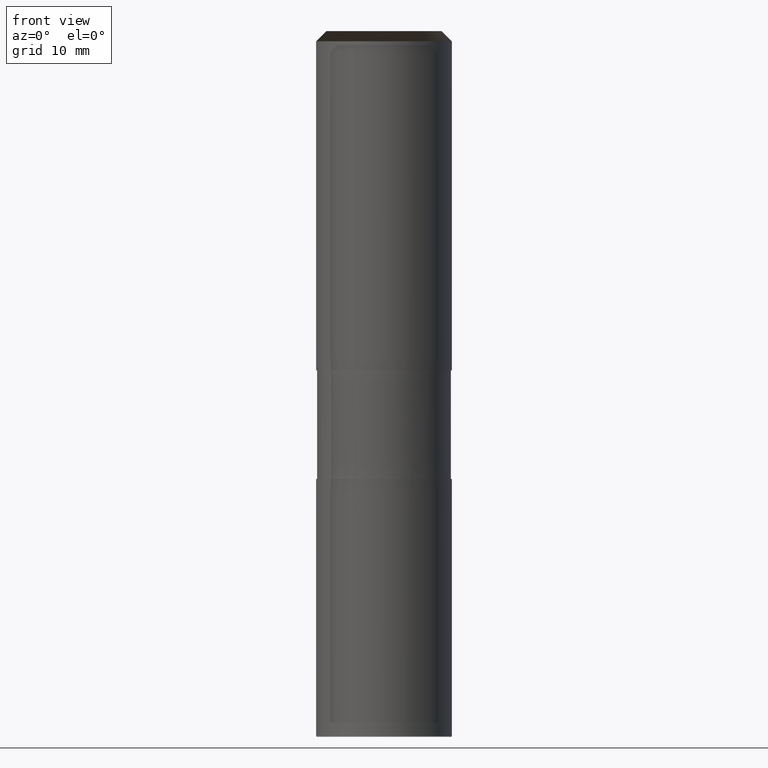
[diagram: clean part render]
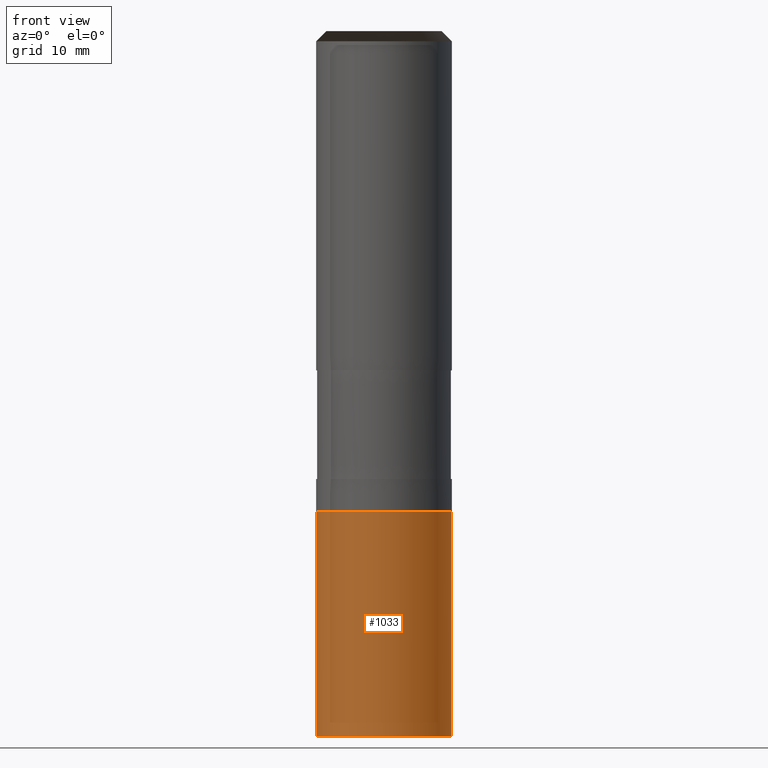
[diagram: same view with one face highlighted and labeled with its STEP entity id]
A machine part, front view. The second image highlights one B-rep face of the part: STEP entity #1033.
In plain terms, the highlighted face is a freeform B-spline surface patch.
Its self-contained STEP definition (entity closure, byte-faithful):
#832=CARTESIAN_POINT('',(10.0,0.0,-53.9));
#836=CARTESIAN_POINT('',(-10.0,0.0,-53.9));
#837=CARTESIAN_POINT('',(10.0,0.0,-20.75));
#841=CARTESIAN_POINT('',(-10.0,0.0,-20.75));
#846=CARTESIAN_POINT('',(-10.0,-10.0,-53.9));
#847=CARTESIAN_POINT('',(0.0,-10.0,-53.9));
#848=CARTESIAN_POINT('',(10.0,-10.0,-53.9));
#849=CARTESIAN_POINT('',(-10.0,-10.0,-20.75));
#850=CARTESIAN_POINT('',(0.0,-10.0,-20.75));
#851=CARTESIAN_POINT('',(10.0,-10.0,-20.75));
#1014=(
BOUNDED_SURFACE()
B_SPLINE_SURFACE(1,2,(
(#836,#846,#847,#848,#832),
(#841,#849,#850,#851,#837)
), .UNSPECIFIED.,.F.,.F.,.F.)
B_SPLINE_SURFACE_WITH_KNOTS((2,2),(3,2,3),(
0.0,1.0),(
0.0,0.5,1.0), .UNSPECIFIED.)
GEOMETRIC_REPRESENTATION_ITEM()
RATIONAL_B_SPLINE_SURFACE(((1.0,0.707106781187,1.0,0.707106781187,1.0),
(1.0,0.707106781187,1.0,0.707106781187,1.0)
))
REPRESENTATION_ITEM('')
SURFACE()
);
#1015=(
BOUNDED_CURVE()
B_SPLINE_CURVE(2,(#832,#848,#847,#846,#836),.UNSPECIFIED.,.F.,.F.)
B_SPLINE_CURVE_WITH_KNOTS((3,2,3),
(0.0,0.5,1.0),.UNSPECIFIED.)
CURVE()
GEOMETRIC_REPRESENTATION_ITEM()
RATIONAL_B_SPLINE_CURVE((1.0,0.707106781187,1.0,0.707106781187,1.0))
REPRESENTATION_ITEM('')
);
#1016=(
BOUNDED_CURVE()
B_SPLINE_CURVE(1,(#836,#841),.UNSPECIFIED.,.F.,.F.)
B_SPLINE_CURVE_WITH_KNOTS((2,2),
(0.0,1.0),.UNSPECIFIED.)
CURVE()
GEOMETRIC_REPRESENTATION_ITEM()
RATIONAL_B_SPLINE_CURVE((1.0,1.0))
REPRESENTATION_ITEM('')
);
#1017=(
BOUNDED_CURVE()
B_SPLINE_CURVE(2,(#841,#849,#850,#851,#837),.UNSPECIFIED.,.F.,.F.)
B_SPLINE_CURVE_WITH_KNOTS((3,2,3),
(0.0,0.5,1.0),.UNSPECIFIED.)
CURVE()
GEOMETRIC_REPRESENTATION_ITEM()
RATIONAL_B_SPLINE_CURVE((1.0,0.707106781187,1.0,0.707106781187,1.0))
REPRESENTATION_ITEM('')
);
#1018=(
BOUNDED_CURVE()
B_SPLINE_CURVE(1,(#837,#832),.UNSPECIFIED.,.F.,.F.)
B_SPLINE_CURVE_WITH_KNOTS((2,2),
(0.0,1.0),.UNSPECIFIED.)
CURVE()
GEOMETRIC_REPRESENTATION_ITEM()
RATIONAL_B_SPLINE_CURVE((1.0,1.0))
REPRESENTATION_ITEM('')
);
#1019=VERTEX_POINT('',#832);
#1020=VERTEX_POINT('',#836);
#1021=VERTEX_POINT('',#837);
#1022=VERTEX_POINT('',#841);
#1023=EDGE_CURVE('',#1019,#1020,#1015,.T.);
#1024=EDGE_CURVE('',#1020,#1022,#1016,.T.);
#1025=EDGE_CURVE('',#1022,#1021,#1017,.T.);
#1026=EDGE_CURVE('',#1021,#1019,#1018,.T.);
#1027=ORIENTED_EDGE('',*,*,#1023,.T.);
#1028=ORIENTED_EDGE('',*,*,#1024,.T.);
#1029=ORIENTED_EDGE('',*,*,#1025,.T.);
#1030=ORIENTED_EDGE('',*,*,#1026,.T.);
#1031=EDGE_LOOP('',(#1027,#1028,#1029,#1030));
#1032=FACE_OUTER_BOUND('',#1031,.T.);
#1033=ADVANCED_FACE('',(#1032),#1014,.T.);